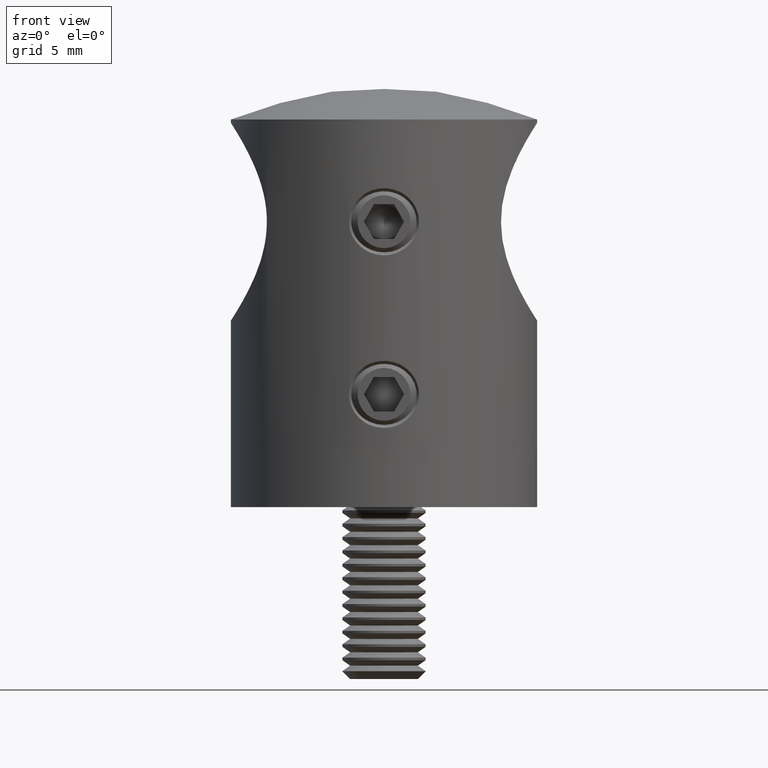
[diagram: clean part render]
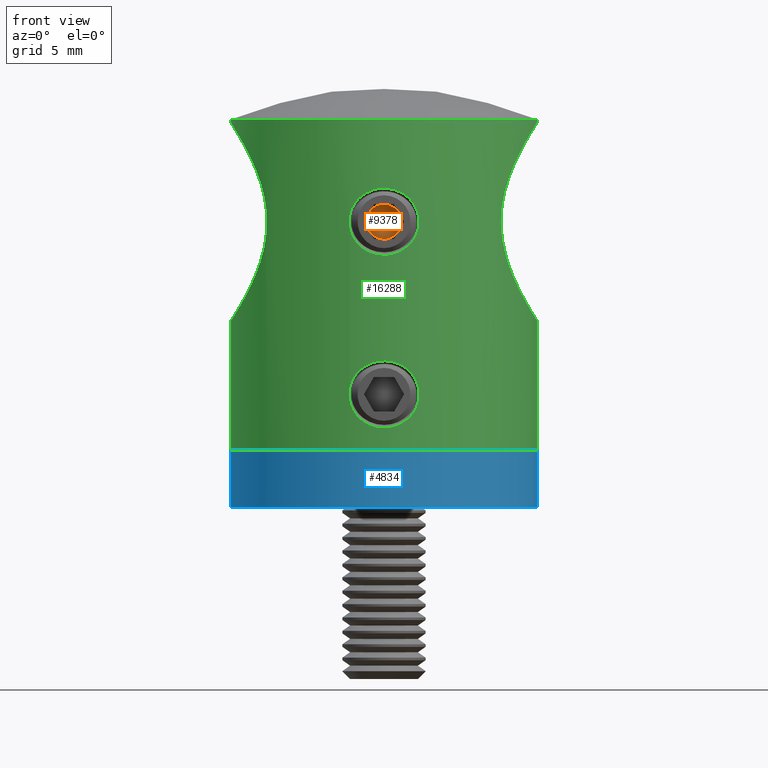
[diagram: same view with three faces highlighted in distinct colors, each labeled with its STEP entity id]
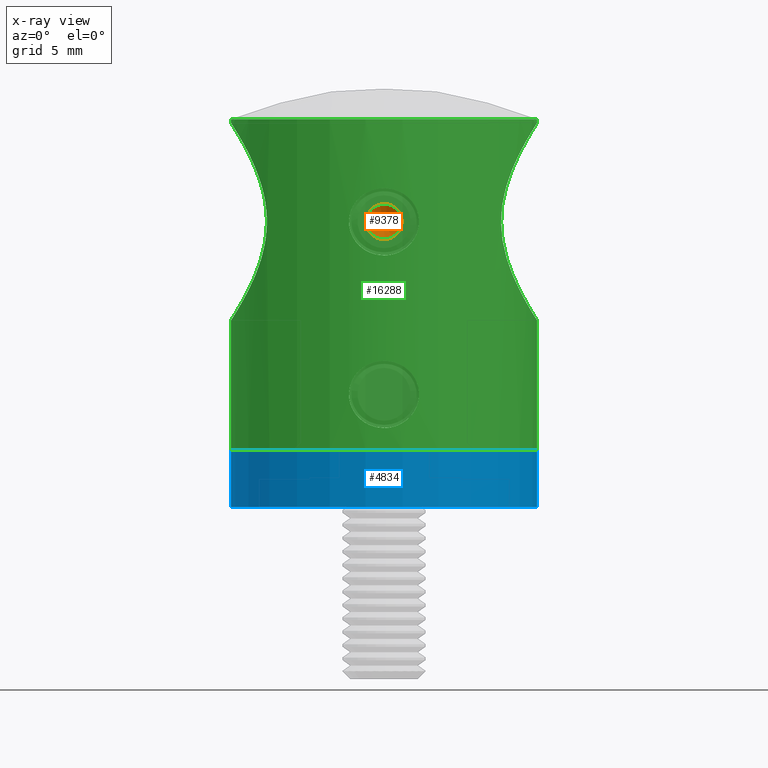
[diagram: x-ray of the same camera — body ghosted, the three highlighted faces saturated]
A machine part, front view with three faces highlighted in distinct colors.
The next image is the same camera in x-ray (body ghosted, the three faces saturated) — at least one of them is partly hidden behind the body in this view.
Their STEP definitions:

[orange] entity #9378 — the highlighted conical surface has half-angle 59 deg.
#101 = DIRECTION ( 'NONE',  ( -1.000000000000000000, -0.0000000000000000000, 0.0000000000000000000 ) ) ;
#181 = ORIENTED_EDGE ( 'NONE', *, *, #7445, .T. ) ;
#628 = VERTEX_POINT ( 'NONE', #13251 ) ;
#1079 = CARTESIAN_POINT ( 'NONE',  ( 2.000000000000001300, 0.0000000000000000000, 5.755839955992561400E-015 ) ) ;
#1451 = AXIS2_PLACEMENT_3D ( 'NONE', #14748, #16484, #6349 ) ;
#1553 = CARTESIAN_POINT ( 'NONE',  ( 2.000000000000001800, 3.755786496842908900E-016, -1.249999999999999300 ) ) ;
#2098 = EDGE_CURVE ( 'NONE', #18902, #4887, #20306, .T. ) ;
#3208 = DIRECTION ( 'NONE',  ( -1.000000000000000000, -0.0000000000000000000, 0.0000000000000000000 ) ) ;
#4139 = CARTESIAN_POINT ( 'NONE',  ( 2.000000000000000000, 0.0000000000000000000, 6.209410300080172700E-015 ) ) ;
#4732 = DIRECTION ( 'NONE',  ( 3.469446951953599400E-016, 0.0000000000000000000, -1.000000000000000000 ) ) ;
#4887 = VERTEX_POINT ( 'NONE', #7149 ) ;
#4956 = FACE_OUTER_BOUND ( 'NONE', #21644, .T. ) ;
#5241 = AXIS2_PLACEMENT_3D ( 'NONE', #6917, #18984, #7281 ) ;
#5413 = ORIENTED_EDGE ( 'NONE', *, *, #12581, .F. ) ;
#6349 = DIRECTION ( 'NONE',  ( 0.0000000000000000000, 0.0000000000000000000, 1.000000000000000000 ) ) ;
#6351 = DIRECTION ( 'NONE',  ( 1.000000000000000000, -0.0000000000000000000, 2.180260461768213300E-016 ) ) ;
#6778 = AXIS2_PLACEMENT_3D ( 'NONE', #13290, #8529, #18533 ) ;
#6917 = CARTESIAN_POINT ( 'NONE',  ( 2.000000000000000000, 0.0000000000000000000, 6.209410300080172700E-015 ) ) ;
#7149 = CARTESIAN_POINT ( 'NONE',  ( 2.000000000000001300, -1.082531754730552600, 0.6250000000000086600 ) ) ;
#7155 = DIRECTION ( 'NONE',  ( 1.000000000000000000, -0.0000000000000000000, 2.180260461768213300E-016 ) ) ;
#7281 = DIRECTION ( 'NONE',  ( 0.0000000000000000000, 0.0000000000000000000, 1.000000000000000000 ) ) ;
#7445 = EDGE_CURVE ( 'NONE', #13828, #19149, #16502, .T. ) ;
#7599 = VERTEX_POINT ( 'NONE', #9926 ) ;
#8519 = ORIENTED_EDGE ( 'NONE', *, *, #12455, .F. ) ;
#8529 = DIRECTION ( 'NONE',  ( -1.000000000000000000, -0.0000000000000000000, 0.0000000000000000000 ) ) ;
#8598 = ORIENTED_EDGE ( 'NONE', *, *, #12327, .F. ) ;
#8868 = CIRCLE ( 'NONE', #5241, 1.250000000000002900 ) ;
#9378 = ADVANCED_FACE ( 'NONE', ( #4956 ), #10725, .F. ) ;
#9879 = CARTESIAN_POINT ( 'NONE',  ( 2.000000000000000000, 0.0000000000000000000, 6.209410300080172700E-015 ) ) ;
#9910 = AXIS2_PLACEMENT_3D ( 'NONE', #9879, #3208, #9950 ) ;
#9926 = CARTESIAN_POINT ( 'NONE',  ( 2.000000000000001300, 1.082531754730552600, 0.6250000000000085500 ) ) ;
#9950 = DIRECTION ( 'NONE',  ( 0.0000000000000000000, 0.0000000000000000000, 1.000000000000000000 ) ) ;
#10277 = CIRCLE ( 'NONE', #9910, 1.250000000000002900 ) ;
#10725 = CONICAL_SURFACE ( 'NONE', #10958, 1.250000000000005300, 1.029744258676652800 ) ;
#10958 = AXIS2_PLACEMENT_3D ( 'NONE', #18701, #7155, #13414 ) ;
#12311 = CARTESIAN_POINT ( 'NONE',  ( 2.000000000000001300, 1.082531754730553100, -0.6249999999999965600 ) ) ;
#12327 = EDGE_CURVE ( 'NONE', #4887, #628, #18000, .T. ) ;
#12455 = EDGE_CURVE ( 'NONE', #628, #7599, #16442, .T. ) ;
#12581 = EDGE_CURVE ( 'NONE', #7599, #19149, #8868, .T. ) ;
#12995 = ORIENTED_EDGE ( 'NONE', *, *, #2098, .F. ) ;
#13251 = CARTESIAN_POINT ( 'NONE',  ( 2.000000000000000000, 0.0000000000000000000, 1.250000000000000200 ) ) ;
#13290 = CARTESIAN_POINT ( 'NONE',  ( 2.000000000000000000, 0.0000000000000000000, 6.209410300080172700E-015 ) ) ;
#13414 = DIRECTION ( 'NONE',  ( 3.469446951953599400E-016, 0.0000000000000000000, -1.000000000000000000 ) ) ;
#13493 = DIRECTION ( 'NONE',  ( 0.0000000000000000000, 0.0000000000000000000, 1.000000000000000000 ) ) ;
#13700 = CARTESIAN_POINT ( 'NONE',  ( 2.000000000000001300, -1.082531754730553300, -0.6249999999999958900 ) ) ;
#13763 = AXIS2_PLACEMENT_3D ( 'NONE', #1079, #6351, #4732 ) ;
#13828 = VERTEX_POINT ( 'NONE', #1553 ) ;
#14674 = ORIENTED_EDGE ( 'NONE', *, *, #19532, .F. ) ;
#14748 = CARTESIAN_POINT ( 'NONE',  ( 2.000000000000000000, 0.0000000000000000000, 6.209410300080172700E-015 ) ) ;
#14957 = AXIS2_PLACEMENT_3D ( 'NONE', #4139, #101, #13493 ) ;
#16442 = CIRCLE ( 'NONE', #6778, 1.250000000000002900 ) ;
#16484 = DIRECTION ( 'NONE',  ( -1.000000000000000000, -0.0000000000000000000, 0.0000000000000000000 ) ) ;
#16502 = CIRCLE ( 'NONE', #13763, 1.250000000000005300 ) ;
#18000 = CIRCLE ( 'NONE', #1451, 1.250000000000002900 ) ;
#18533 = DIRECTION ( 'NONE',  ( 0.0000000000000000000, 0.0000000000000000000, 1.000000000000000000 ) ) ;
#18701 = CARTESIAN_POINT ( 'NONE',  ( 2.000000000000001300, 0.0000000000000000000, 5.755839955992561400E-015 ) ) ;
#18902 = VERTEX_POINT ( 'NONE', #13700 ) ;
#18984 = DIRECTION ( 'NONE',  ( -1.000000000000000000, -0.0000000000000000000, 0.0000000000000000000 ) ) ;
#19149 = VERTEX_POINT ( 'NONE', #12311 ) ;
#19532 = EDGE_CURVE ( 'NONE', #13828, #18902, #10277, .T. ) ;
#20306 = CIRCLE ( 'NONE', #14957, 1.250000000000002900 ) ;
#21644 = EDGE_LOOP ( 'NONE', ( #181, #5413, #8519, #8598, #12995, #14674 ) ) ;

[blue] entity #4834 — the highlighted cylindrical surface (bore or boss wall) has radius 11 mm, axis along (-0, -0, -1).
#806 = CARTESIAN_POINT ( 'NONE',  ( 0.0000000000000000000, 0.0000000000000000000, -4.099999999999999600 ) ) ;
#1974 = AXIS2_PLACEMENT_3D ( 'NONE', #14090, #19071, #20597 ) ;
#2199 = FACE_OUTER_BOUND ( 'NONE', #8574, .T. ) ;
#3113 = DIRECTION ( 'NONE',  ( -1.000000000000000000, 0.0000000000000000000, 0.0000000000000000000 ) ) ;
#4834 = ADVANCED_FACE ( 'NONE', ( #2199, #20756 ), #17861, .T. ) ;
#4842 = CARTESIAN_POINT ( 'NONE',  ( -11.00000000000000000, 0.0000000000000000000, 0.0000000000000000000 ) ) ;
#4919 = CARTESIAN_POINT ( 'NONE',  ( -11.00000000000000000, 0.0000000000000000000, -4.099999999999999600 ) ) ;
#5495 = DIRECTION ( 'NONE',  ( -1.000000000000000000, 0.0000000000000000000, 0.0000000000000000000 ) ) ;
#7589 = CIRCLE ( 'NONE', #18514, 11.00000000000000000 ) ;
#8179 = ORIENTED_EDGE ( 'NONE', *, *, #11706, .F. ) ;
#8574 = EDGE_LOOP ( 'NONE', ( #16320 ) ) ;
#9018 = AXIS2_PLACEMENT_3D ( 'NONE', #806, #15503, #5495 ) ;
#10245 = VERTEX_POINT ( 'NONE', #4919 ) ;
#10771 = EDGE_CURVE ( 'NONE', #15722, #15722, #7589, .T. ) ;
#11706 = EDGE_CURVE ( 'NONE', #10245, #10245, #14924, .T. ) ;
#13140 = DIRECTION ( 'NONE',  ( -0.0000000000000000000, -0.0000000000000000000, -1.000000000000000000 ) ) ;
#14090 = CARTESIAN_POINT ( 'NONE',  ( 0.0000000000000000000, 0.0000000000000000000, -2.100000000000000100 ) ) ;
#14924 = CIRCLE ( 'NONE', #9018, 11.00000000000000000 ) ;
#15503 = DIRECTION ( 'NONE',  ( -0.0000000000000000000, -0.0000000000000000000, -1.000000000000000000 ) ) ;
#15722 = VERTEX_POINT ( 'NONE', #4842 ) ;
#16320 = ORIENTED_EDGE ( 'NONE', *, *, #10771, .T. ) ;
#17861 = CYLINDRICAL_SURFACE ( 'NONE', #1974, 11.00000000000000000 ) ;
#18514 = AXIS2_PLACEMENT_3D ( 'NONE', #19724, #13140, #3113 ) ;
#19071 = DIRECTION ( 'NONE',  ( -0.0000000000000000000, -0.0000000000000000000, -1.000000000000000000 ) ) ;
#19724 = CARTESIAN_POINT ( 'NONE',  ( 0.0000000000000000000, 0.0000000000000000000, 0.0000000000000000000 ) ) ;
#20597 = DIRECTION ( 'NONE',  ( -1.000000000000000000, 0.0000000000000000000, 0.0000000000000000000 ) ) ;
#20756 = FACE_OUTER_BOUND ( 'NONE', #20876, .T. ) ;
#20876 = EDGE_LOOP ( 'NONE', ( #8179 ) ) ;

[green] entity #16288 — the highlighted cylindrical surface (bore or boss wall) has radius 11 mm, axis along (0, 0, 1).
#34 = CARTESIAN_POINT ( 'NONE',  ( -9.445165846722382200, 5.646025497822180700, 20.72855546715352300 ) ) ;
#64 = CARTESIAN_POINT ( 'NONE',  ( -2.495363705507605000, -10.71327480271960800, 4.317531738034352500 ) ) ;
#118 = CARTESIAN_POINT ( 'NONE',  ( -2.257482614959168500, -10.76605286276669600, 15.32954661957115100 ) ) ;
#134 = CARTESIAN_POINT ( 'NONE',  ( -1.996185883738268000, -10.81775451556606900, 5.474240922415229500 ) ) ;
#194 = CARTESIAN_POINT ( 'NONE',  ( -2.511703974928243700, -10.70940442520010400, 16.24273929157860500 ) ) ;
#212 = CARTESIAN_POINT ( 'NONE',  ( -2.511716516407509900, -10.70940148379944100, 4.000337813666588400 ) ) ;
#242 = CARTESIAN_POINT ( 'NONE',  ( -10.53371792439568500, 3.199456506150320000, 10.04470791799387700 ) ) ;
#317 = EDGE_CURVE ( 'NONE', #2653, #2653, #14908, .T. ) ;
#330 = CARTESIAN_POINT ( 'NONE',  ( -1.543197030239320100, -10.89377639715052800, 18.33176205964109700 ) ) ;
#345 = CARTESIAN_POINT ( 'NONE',  ( 1.535022905085276800, -10.89323192799682400, 5.918116975765959100 ) ) ;
#382 = CARTESIAN_POINT ( 'NONE',  ( -8.442684130846844300, -7.052366154554801100, 15.45217027337697100 ) ) ;
#398 = CARTESIAN_POINT ( 'NONE',  ( 1.998357958369216600, -10.81735236367316800, 17.87152513571616200 ) ) ;
#456 = CARTESIAN_POINT ( 'NONE',  ( -9.614416560844219400, -5.356351696933844100, 11.71785320789334200 ) ) ;
#474 = CARTESIAN_POINT ( 'NONE',  ( 0.4897246382423631200, -10.98909321912860500, 14.03119656173292800 ) ) ;
#491 = CARTESIAN_POINT ( 'NONE',  ( 2.495297978060744700, -10.71329013739285200, 3.682043413930197400 ) ) ;
#519 = DIRECTION ( 'NONE',  ( -0.0000000000000000000, -0.0000000000000000000, 1.000000000000000000 ) ) ;
#531 = CARTESIAN_POINT ( 'NONE',  ( -10.76013234905316700, -2.327659393083311400, 23.12391534086663500 ) ) ;
#548 = CARTESIAN_POINT ( 'NONE',  ( 2.511799944583926100, -10.70938191707799400, 16.55668838989981500 ) ) ;
#608 = CARTESIAN_POINT ( 'NONE',  ( -8.979158664259912800, -6.358026487253732200, 19.59329309121691800 ) ) ;
#624 = CARTESIAN_POINT ( 'NONE',  ( 2.087175410688430600, -10.80017123961548500, 15.05642817077661600 ) ) ;
#697 = CARTESIAN_POINT ( 'NONE',  ( 0.9648935137385287200, -10.95759921274479100, 18.62983488542676700 ) ) ;
#994 = CARTESIAN_POINT ( 'NONE',  ( 8.716197689742696000, -6.713987155183075700, 14.04568685242709100 ) ) ;
#1053 = CARTESIAN_POINT ( 'NONE',  ( 0.0000000000000000000, 0.0000000000000000000, 25.99999999999999600 ) ) ;
#1057 = CARTESIAN_POINT ( 'NONE',  ( 9.132219529114749400, -6.139339865191940900, 12.80533429294058900 ) ) ;
#1108 = ORIENTED_EDGE ( 'NONE', *, *, #9304, .T. ) ;
#1202 = CARTESIAN_POINT ( 'NONE',  ( 9.611617826107234900, -5.361562930642149300, 21.07654444607350500 ) ) ;
#1275 = CARTESIAN_POINT ( 'NONE',  ( 8.413237320255296600, -7.086500040589212900, 15.90136674223512400 ) ) ;
#1347 = CARTESIAN_POINT ( 'NONE',  ( 8.558052539306178400, 6.911109365526332500, 14.75603232091404100 ) ) ;
#1417 = CARTESIAN_POINT ( 'NONE',  ( 8.442684130846840800, 7.052366154554805500, 15.45217027337697100 ) ) ;
#1490 = CARTESIAN_POINT ( 'NONE',  ( 10.52162891456611900, -3.215649772253206300, 22.73424068538132300 ) ) ;
#1529 = CARTESIAN_POINT ( 'NONE',  ( -2.320240922396904300, -10.75251050043824500, 3.075104445097748900 ) ) ;
#1560 = CARTESIAN_POINT ( 'NONE',  ( 10.10047049893863900, -4.375164704028945200, 22.01011196334505000 ) ) ;
#1601 = CARTESIAN_POINT ( 'NONE',  ( -1.533328306870229700, -10.89347143110832900, 2.080631270009437800 ) ) ;
#1677 = CARTESIAN_POINT ( 'NONE',  ( -2.430626934630721900, -10.72814813956303400, 3.370817171176732100 ) ) ;
#1720 = CARTESIAN_POINT ( 'NONE',  ( -8.441615027164317600, 7.053644850158699200, 17.33924664838002300 ) ) ;
#1733 = CARTESIAN_POINT ( 'NONE',  ( -0.9635496633443911800, -10.95771746515983500, 14.16962789533540800 ) ) ;
#1750 = CARTESIAN_POINT ( 'NONE',  ( -0.1616220107861330000, -11.00003883473656800, 6.415315291332948500 ) ) ;
#1930 = CARTESIAN_POINT ( 'NONE',  ( -10.99148700237107000, 0.4946336514024489700, 23.48682921834959500 ) ) ;
#1948 = CARTESIAN_POINT ( 'NONE',  ( -2.087678545343330000, -10.80007399471471700, 15.05715110750825800 ) ) ;
#1965 = CARTESIAN_POINT ( 'NONE',  ( 1.774878405260975000, -10.85586508052390200, 2.291099913721534000 ) ) ;
#2003 = CARTESIAN_POINT ( 'NONE',  ( -10.69829764722809700, -2.568131071932639600, 9.776651623962857600 ) ) ;
#2020 = CARTESIAN_POINT ( 'NONE',  ( -0.9631123533028067600, -10.95775591053731500, 18.63054673490993100 ) ) ;
#2073 = CARTESIAN_POINT ( 'NONE',  ( -10.32893578937957300, -3.788682685638863100, 22.40898187192343400 ) ) ;
#2093 = CARTESIAN_POINT ( 'NONE',  ( 2.381829622713069700, -10.73922843645709300, 15.61740488451371400 ) ) ;
#2144 = CARTESIAN_POINT ( 'NONE',  ( -8.713927950806921200, -6.716937605689044400, 18.74613954834619600 ) ) ;
#2166 = CARTESIAN_POINT ( 'NONE',  ( 0.3284569030260461900, -10.99628005262925400, 14.00036723653772300 ) ) ;
#2181 = CARTESIAN_POINT ( 'NONE',  ( 1.890372269886328600, -10.83698242449021300, 2.402011649646420100 ) ) ;
#2218 = CARTESIAN_POINT ( 'NONE',  ( -10.53058741645235900, -3.186281656805154800, 22.74910505009927800 ) ) ;
#2235 = CARTESIAN_POINT ( 'NONE',  ( 1.263044276381334100, -10.92810671215078600, 18.49350634205210800 ) ) ;
#2306 = CARTESIAN_POINT ( 'NONE',  ( 1.265772666088006400, -10.93117442415845100, 14.29018104766522700 ) ) ;
#2371 = CARTESIAN_POINT ( 'NONE',  ( 1.399033590713174800, -10.91066932007638700, 18.40581165892201200 ) ) ;
#2550 = EDGE_LOOP ( 'NONE', ( #6150 ) ) ;
#2653 = VERTEX_POINT ( 'NONE', #7920 ) ;
#2667 = CARTESIAN_POINT ( 'NONE',  ( 8.485167145169288700, -7.000410335542114600, 15.19174385368667200 ) ) ;
#2737 = CARTESIAN_POINT ( 'NONE',  ( 8.441615027164326400, -7.053644850158703700, 17.33924664838004000 ) ) ;
#3023 = CARTESIAN_POINT ( 'NONE',  ( 10.32893578937957500, 3.788682685638860500, 22.40898187192343700 ) ) ;
#3097 = CARTESIAN_POINT ( 'NONE',  ( 9.947855748482229600, 4.698627205197778900, 21.72771569207881700 ) ) ;
#3165 = CARTESIAN_POINT ( 'NONE',  ( 10.39262641175012400, 3.610959546615188500, 10.28242976620969500 ) ) ;
#3200 = ORIENTED_EDGE ( 'NONE', *, *, #10980, .T. ) ;
#3225 = CARTESIAN_POINT ( 'NONE',  ( 10.99999999999999600, 0.0000000000000000000, 23.74878637916747000 ) ) ;
#3232 = CARTESIAN_POINT ( 'NONE',  ( 10.38970443803621400, -3.619270667396483600, 22.51260078479329600 ) ) ;
#3260 = EDGE_LOOP ( 'NONE', ( #1108 ) ) ;
#3277 = CYLINDRICAL_SURFACE ( 'NONE', #7919, 10.99999999999999800 ) ;
#3348 = CARTESIAN_POINT ( 'NONE',  ( -1.776361239528236000, -10.85562254072522800, 5.707474951774919700 ) ) ;
#3388 = CARTESIAN_POINT ( 'NONE',  ( -9.125703618000466500, 6.149007665515013900, 19.97822596878965500 ) ) ;
#3422 = CARTESIAN_POINT ( 'NONE',  ( -2.495562452211827600, -10.71322910456378900, 3.683362971071481300 ) ) ;
#3460 = CARTESIAN_POINT ( 'NONE',  ( -10.99999999999999500, 0.4841043843129387300, 9.299999999999995400 ) ) ;
#3476 = CARTESIAN_POINT ( 'NONE',  ( -2.511716516407509900, -10.70940148379944100, 16.40033781366658500 ) ) ;
#3495 = CARTESIAN_POINT ( 'NONE',  ( -0.6530340315527127800, -10.98180644576739700, 6.337544000683097400 ) ) ;
#3536 = CARTESIAN_POINT ( 'NONE',  ( -9.611617826107233100, 5.361562930642147500, 21.07654444607351300 ) ) ;
#3571 = CARTESIAN_POINT ( 'NONE',  ( 2.430721202022804000, -10.72812621128730700, 3.371317447623022100 ) ) ;
#3625 = CARTESIAN_POINT ( 'NONE',  ( -2.495363705507605000, -10.71327480271960800, 16.71753173803435300 ) ) ;
#3684 = CARTESIAN_POINT ( 'NONE',  ( -10.39889520333792000, -3.592859680259353100, 22.52820406413297100 ) ) ;
#3698 = CARTESIAN_POINT ( 'NONE',  ( 2.179889364258655400, -10.78223673683874400, 17.61001349837584600 ) ) ;
#3710 = CARTESIAN_POINT ( 'NONE',  ( 2.511715917072544300, -10.70940162436372500, 3.998297708608496300 ) ) ;
#3748 = CARTESIAN_POINT ( 'NONE',  ( -10.99999999999999600, 2.710505431213761100E-016, 9.299999999999995400 ) ) ;
#3767 = CARTESIAN_POINT ( 'NONE',  ( -0.8104466576801517800, -10.97117418874867300, 18.69149778061502700 ) ) ;
#3824 = CARTESIAN_POINT ( 'NONE',  ( -9.134031390889502300, -6.136687821570409300, 19.99930232546839900 ) ) ;
#3843 = CARTESIAN_POINT ( 'NONE',  ( -2.020667218593132300E-015, -10.99999999999999800, 13.98484490069484600 ) ) ;
#3861 = CARTESIAN_POINT ( 'NONE',  ( -2.020667218593132300E-015, -10.99999999999999800, 1.584844900694847100 ) ) ;
#3897 = CARTESIAN_POINT ( 'NONE',  ( -10.39262641175012400, -3.610959546615189400, 10.28242976620969400 ) ) ;
#3916 = CARTESIAN_POINT ( 'NONE',  ( 2.178857699620404100, -10.78245327803794000, 15.18811744677702300 ) ) ;
#3982 = CARTESIAN_POINT ( 'NONE',  ( 2.256830909749577800, -10.76619328780971300, 17.47192719234511700 ) ) ;
#4079 = FACE_BOUND ( 'NONE', #2550, .T. ) ;
#4495 = CARTESIAN_POINT ( 'NONE',  ( 9.125703618000468300, -6.149007665515014800, 19.97822596878964800 ) ) ;
#4562 = CARTESIAN_POINT ( 'NONE',  ( 10.10539096786581000, -4.364378087092130300, 10.78095930433928400 ) ) ;
#4709 = CARTESIAN_POINT ( 'NONE',  ( 8.605012383103654000, 6.852844332284524500, 14.52826397732347600 ) ) ;
#4710 = CIRCLE ( 'NONE', #9852, 11.00000000000000000 ) ;
#4779 = CARTESIAN_POINT ( 'NONE',  ( 9.126122353799150500, 6.148371097858402300, 12.82074655299189000 ) ) ;
#4848 = CARTESIAN_POINT ( 'NONE',  ( 10.84870917457875600, 1.878547199976223300, 23.26366087614006200 ) ) ;
#4892 = CARTESIAN_POINT ( 'NONE',  ( -1.661524859658452900, -10.87442308525437100, 2.181962713599229900 ) ) ;
#4927 = CARTESIAN_POINT ( 'NONE',  ( 10.84297000111511100, -1.910690892895690100, 23.25460155054432200 ) ) ;
#5005 = CARTESIAN_POINT ( 'NONE',  ( -8.485167145169281600, 7.000410335542112800, 15.19174385368666700 ) ) ;
#5021 = CARTESIAN_POINT ( 'NONE',  ( -1.892899697437106800, -10.83654340792404500, 14.80472538099371200 ) ) ;
#5039 = CARTESIAN_POINT ( 'NONE',  ( -1.397269774137160900, -10.91089534265097100, 1.993051909358202400 ) ) ;
#5078 = CARTESIAN_POINT ( 'NONE',  ( -9.451433528349374700, 5.635541834417797900, 12.05790560231922000 ) ) ;
#5094 = CARTESIAN_POINT ( 'NONE',  ( -1.777212278540741600, -10.85548324659036000, 14.69334404728969000 ) ) ;
#5112 = CARTESIAN_POINT ( 'NONE',  ( 0.9648935137385287200, -10.95759921274479100, 6.229834885426770400 ) ) ;
#5191 = CARTESIAN_POINT ( 'NONE',  ( -2.430803093581094000, -10.72810763096586800, 4.628396887069898800 ) ) ;
#5228 = CARTESIAN_POINT ( 'NONE',  ( -8.602152119893851500, 6.856982156598213900, 14.49886696194903600 ) ) ;
#5248 = CARTESIAN_POINT ( 'NONE',  ( -1.533328306870229700, -10.89347143110832900, 14.48063127000943600 ) ) ;
#5269 = CARTESIAN_POINT ( 'NONE',  ( 1.543890676010267700, -10.89363039259128000, 2.069276441871760900 ) ) ;
#5303 = CARTESIAN_POINT ( 'NONE',  ( -10.96821046489719000, 0.9576882426351973600, 9.348973725324683000 ) ) ;
#5322 = CARTESIAN_POINT ( 'NONE',  ( -1.996185883716013400, -10.81775451557036900, 17.87424092245295900 ) ) ;
#5374 = CARTESIAN_POINT ( 'NONE',  ( -9.947855748482227900, -4.698627205197779800, 21.72771569207881400 ) ) ;
#5390 = CARTESIAN_POINT ( 'NONE',  ( 2.463499994663159100, -10.72059549541417000, 16.87095394980573500 ) ) ;
#5406 = CARTESIAN_POINT ( 'NONE',  ( 2.318934602487287200, -10.75279230290379400, 3.072080269349922100 ) ) ;
#5407 = B_SPLINE_CURVE_WITH_KNOTS ( 'NONE', 3,
 ( #18481, #16650, #21502, #11697, #6652, #14912, #5039, #1601, #4892, #20178, #8480, #18327, #16724, #20248, #10238, #1529, #13527, #1677, #13385, #3422, #11847, #212, #6799, #64, #18405, #5191, #6581, #19959, #8556, #13235, #16576, #134, #8334, #3348, #10164, #8404, #8261, #9944, #3495, #10093, #11772, #1750, #13311, #15126, #21618, #5112, #11622, #16800, #15204, #345, #10377, #5549, #13819, #12070, #15348, #12135, #7230, #6941, #12210, #10586, #15415, #13885, #17223, #3710, #8623, #491, #8909, #3571, #20320, #5406, #7085, #17086, #18774, #20601, #2181, #1965, #5269, #8765, #5478, #17018, #13672, #20460, #15486, #10445, #3861 ),
 .UNSPECIFIED., .T., .F.,
 ( 4, 3, 3, 3, 3, 3, 3, 3, 3, 3, 3, 3, 3, 3, 3, 3, 3, 3, 3, 3, 3, 3, 3, 3, 3, 3, 3, 3, 4 ),
 ( 0.0000000000000000000, 0.03571428571428571200, 0.07142857142857142500, 0.1071428571428571400, 0.1428571428571428500, 0.1785714285714285800, 0.2142857142857142700, 0.2500000000000000000, 0.2857142857142857000, 0.3214285714285714500, 0.3571428571428571500, 0.3928571428571428500, 0.4285714285714285500, 0.4642857142857143000, 0.5000000000000000000, 0.5357142857142857000, 0.5714285714285714000, 0.6071428571428571000, 0.6428571428571429000, 0.6785714285714286000, 0.7142857142857143000, 0.7500000000000000000, 0.7857142857142857000, 0.8214285714285714000, 0.8571428571428571000, 0.8928571428571429000, 0.9285714285714286000, 0.9642857142857143000, 1.000000000000000000 ),
 .UNSPECIFIED. ) ;
#5437 = CARTESIAN_POINT ( 'NONE',  ( 0.0000000000000000000, 0.0000000000000000000, 23.74878637916747000 ) ) ;
#5446 = CARTESIAN_POINT ( 'NONE',  ( -10.10047034617905800, -4.375483649562109000, 10.78982942695773400 ) ) ;
#5463 = CARTESIAN_POINT ( 'NONE',  ( 1.777126563584013900, -10.85549727912102600, 18.10673847623389300 ) ) ;
#5478 = CARTESIAN_POINT ( 'NONE',  ( 0.9623838866416614100, -10.95781991341035100, 1.769162574123964900 ) ) ;
#5549 = CARTESIAN_POINT ( 'NONE',  ( 1.777126563584013900, -10.85549727912102600, 5.706738476233899100 ) ) ;
#5586 = CARTESIAN_POINT ( 'NONE',  ( -10.99999999999999800, -0.4841043843129450600, 9.299999999999995400 ) ) ;
#6150 = ORIENTED_EDGE ( 'NONE', *, *, #16040, .T. ) ;
#6188 = FACE_OUTER_BOUND ( 'NONE', #17143, .T. ) ;
#6329 = CARTESIAN_POINT ( 'NONE',  ( 10.75664178787483000, -2.343158699880905100, 9.681676794799932000 ) ) ;
#6399 = CARTESIAN_POINT ( 'NONE',  ( 9.941559082019178800, -4.721753626895443600, 21.72179177554297200 ) ) ;
#6470 = CARTESIAN_POINT ( 'NONE',  ( 10.59253960969031100, 2.974511089570728300, 22.85112724400619300 ) ) ;
#6543 = CARTESIAN_POINT ( 'NONE',  ( 10.58647855960269600, 2.995887424184126200, 9.958827788779814200 ) ) ;
#6581 = CARTESIAN_POINT ( 'NONE',  ( -2.382856163137168100, -10.73900133749352800, 4.779816620111248000 ) ) ;
#6611 = CARTESIAN_POINT ( 'NONE',  ( 11.00000000000000500, 0.4841043843129448900, 9.300000000000000700 ) ) ;
#6613 = EDGE_LOOP ( 'NONE', ( #15336 ) ) ;
#6652 = CARTESIAN_POINT ( 'NONE',  ( -1.115993498496286900, -10.94431255610769100, 1.830513048320795400 ) ) ;
#6710 = FACE_BOUND ( 'NONE', #3260, .T. ) ;
#6767 = CARTESIAN_POINT ( 'NONE',  ( -10.58394417430352300, 3.004956304348640900, 22.83701482432169200 ) ) ;
#6799 = CARTESIAN_POINT ( 'NONE',  ( -2.511729057886776100, -10.70939854239878000, 4.157936335757463000 ) ) ;
#6852 = CARTESIAN_POINT ( 'NONE',  ( -2.511729057886776100, -10.70939854239878000, 16.55793633575457200 ) ) ;
#6903 = CARTESIAN_POINT ( 'NONE',  ( -9.941559082019182400, 4.721753626895441000, 21.72179177554297200 ) ) ;
#6921 = CARTESIAN_POINT ( 'NONE',  ( -1.661524859644376400, -10.87442308525667500, 14.58196271358566800 ) ) ;
#6941 = CARTESIAN_POINT ( 'NONE',  ( 2.320207892953276600, -10.75251762767572900, 4.924972162063986600 ) ) ;
#6996 = CARTESIAN_POINT ( 'NONE',  ( -1.115993498471008700, -10.94431255610991500, 14.23051304831070000 ) ) ;
#7050 = CARTESIAN_POINT ( 'NONE',  ( -8.713338137559071900, -6.714570131918350200, 14.08064251900250200 ) ) ;
#7069 = CARTESIAN_POINT ( 'NONE',  ( 0.002621827913309108200, -10.99999968754628400, 18.81515378352823500 ) ) ;
#7085 = CARTESIAN_POINT ( 'NONE',  ( 2.256039582255863900, -10.76635616935171300, 2.926755654170211800 ) ) ;
#7142 = CARTESIAN_POINT ( 'NONE',  ( 1.543890676010139400, -10.89363039259130200, 14.46927644187164600 ) ) ;
#7195 = CARTESIAN_POINT ( 'NONE',  ( -8.402678174434401000, -7.098943678384630500, 16.89213793340527300 ) ) ;
#7230 = CARTESIAN_POINT ( 'NONE',  ( 2.256830909742726800, -10.76619328781119300, 5.071927192361033400 ) ) ;
#7353 = CARTESIAN_POINT ( 'NONE',  ( 1.995493121756457100, -10.81788920119303300, 14.92473889477621200 ) ) ;
#7646 = CARTESIAN_POINT ( 'NONE',  ( 8.602152119893858600, -6.856982156598218300, 14.49886696194906400 ) ) ;
#7858 = CARTESIAN_POINT ( 'NONE',  ( 10.40114453351063000, -3.603181246278879300, 10.26497764200933300 ) ) ;
#7919 = AXIS2_PLACEMENT_3D ( 'NONE', #1053, #15892, #14299 ) ;
#7920 = CARTESIAN_POINT ( 'NONE',  ( -10.99999999999999800, 0.0000000000000000000, 9.299999999999998900 ) ) ;
#7998 = CARTESIAN_POINT ( 'NONE',  ( 10.99148700237106600, -0.4946336514024511400, 23.48682921834958400 ) ) ;
#8068 = CARTESIAN_POINT ( 'NONE',  ( 10.74873748235941500, 2.348874627246540800, 9.695645327102669200 ) ) ;
#8142 = CARTESIAN_POINT ( 'NONE',  ( 10.95950930229003000, -0.9729361877379636400, 23.43713052271612800 ) ) ;
#8217 = CARTESIAN_POINT ( 'NONE',  ( 10.83727758145454200, 1.898942890585056900, 9.554592817602499000 ) ) ;
#8261 = CARTESIAN_POINT ( 'NONE',  ( -0.9631123533028165300, -10.95775591053731500, 6.230546734909931500 ) ) ;
#8293 = CARTESIAN_POINT ( 'NONE',  ( 10.31976075114465600, -3.813519458579155000, 22.39319822350305600 ) ) ;
#8334 = CARTESIAN_POINT ( 'NONE',  ( -1.892943344172719700, -10.83654561251257500, 5.595331397847613400 ) ) ;
#8388 = CARTESIAN_POINT ( 'NONE',  ( -0.6586619930911564700, -10.98452728325967300, 14.04785758938482100 ) ) ;
#8404 = CARTESIAN_POINT ( 'NONE',  ( -1.268443744210112200, -10.93091935414430800, 6.108644643610253100 ) ) ;
#8443 = CARTESIAN_POINT ( 'NONE',  ( -10.99961482503125000, 0.2557540722021372500, 23.49940324905146500 ) ) ;
#8480 = CARTESIAN_POINT ( 'NONE',  ( -1.892899697423030100, -10.83654340792634900, 2.404725380980155000 ) ) ;
#8516 = CARTESIAN_POINT ( 'NONE',  ( -10.38970443803621700, 3.619270667396481400, 22.51260078479329600 ) ) ;
#8534 = CARTESIAN_POINT ( 'NONE',  ( -2.020667218593132300E-015, -10.99999999999999800, 13.98484490069484600 ) ) ;
#8556 = CARTESIAN_POINT ( 'NONE',  ( -2.256864148927033100, -10.76618397735132300, 5.071739856433886500 ) ) ;
#8588 = CARTESIAN_POINT ( 'NONE',  ( -10.99999999999999600, 2.710505431213761100E-016, 9.299999999999995400 ) ) ;
#8607 = CARTESIAN_POINT ( 'NONE',  ( -2.087083062809130600, -10.80018908579545200, 17.74370445952115500 ) ) ;
#8623 = CARTESIAN_POINT ( 'NONE',  ( 2.511631889561162000, -10.70942133164945500, 3.839907027314249300 ) ) ;
#8663 = VERTEX_POINT ( 'NONE', #15076 ) ;
#8666 = CARTESIAN_POINT ( 'NONE',  ( -10.99297397562942500, -0.4598195259154094200, 23.48913258083435500 ) ) ;
#8682 = CARTESIAN_POINT ( 'NONE',  ( -1.776361239528236000, -10.85562254072522800, 18.10747495177491800 ) ) ;
#8731 = CARTESIAN_POINT ( 'NONE',  ( -10.32148190190005700, -3.808950110484047100, 10.40382481806966600 ) ) ;
#8750 = CARTESIAN_POINT ( 'NONE',  ( 2.318934602487287200, -10.75279230290379400, 15.47208026934992200 ) ) ;
#8765 = CARTESIAN_POINT ( 'NONE',  ( 1.265772666319474600, -10.93117442413812100, 1.890181047744562000 ) ) ;
#8824 = CARTESIAN_POINT ( 'NONE',  ( 2.495297978060719400, -10.71329013739285700, 16.08204341393588500 ) ) ;
#8877 = CARTESIAN_POINT ( 'NONE',  ( -9.454023007717237800, -5.631244608318725800, 20.74775790618729600 ) ) ;
#8909 = CARTESIAN_POINT ( 'NONE',  ( 2.463009590041774600, -10.72070817434008000, 3.526680430776609800 ) ) ;
#9021 = B_SPLINE_CURVE_WITH_KNOTS ( 'NONE', 3,
 ( #12772, #16318, #21006, #16038, #6329, #19501, #7858, #4562, #11288, #16111, #11061, #1057, #19643, #994, #7646, #2667, #19360, #1275, #19573, #12697, #2737, #14439, #9542, #21146, #21218, #14509, #4495, #16179, #1202, #6399, #1560, #8293, #3232, #1490, #21361, #17991, #4927, #11438, #8142, #7998, #11363, #13125, #13058, #19920, #16684, #4848, #9679, #6470, #16465, #11656, #3023, #14797, #16396, #3097, #21571, #19707, #18285, #14728, #16605, #21430, #19778, #18135, #13267, #19846, #1417, #1347, #4709, #21499, #9755, #14941, #4779, #9832, #16536, #18064, #13194, #11509, #3165, #14870, #6543, #18212, #8068, #8217, #9905, #11579, #6611, #19992 ),
 .UNSPECIFIED., .T., .F.,
 ( 4, 2, 2, 2, 2, 2, 2, 2, 2, 2, 2, 2, 2, 2, 2, 2, 2, 2, 2, 2, 2, 2, 2, 2, 2, 2, 2, 2, 2, 2, 2, 2, 2, 2, 2, 2, 2, 2, 2, 2, 2, 2, 4 ),
 ( 0.0000000000000000000, 0.001429294004371784200, 0.002858588008743568400, 0.004287882013115352400, 0.005717176017487137600, 0.007146470021858922900, 0.008575764026230708200, 0.01000505803060249300, 0.01071970503278838600, 0.01143435203497427400, 0.01286364603934605700, 0.01357829304153195000, 0.01429294004371784100, 0.01572223404808962800, 0.01715152805246140900, 0.01858082205683319500, 0.01929546905901909100, 0.02001011606120498700, 0.02143941006557678300, 0.02215405706776268200, 0.02286870406994858200, 0.02358335107213447800, 0.02429799807432037700, 0.02572729207869217300, 0.02644193908087807600, 0.02715658608306396900, 0.02787123308524986500, 0.02858588008743576100, 0.03001517409180755700, 0.03144446809617935200, 0.03287376210055114500, 0.03430305610492294400, 0.03573235010929473600, 0.03644699711148063200, 0.03716164411366652800, 0.03859093811803832700, 0.04002023212241012700, 0.04144952612678192600, 0.04216417312896782200, 0.04287882013115372500, 0.04359346713333962100, 0.04430811413552551700, 0.04573740813989731600 ),
 .UNSPECIFIED. ) ;
#9026 = CARTESIAN_POINT ( 'NONE',  ( -10.52509504090270200, -3.204385582520144800, 10.05999941236710000 ) ) ;
#9304 = EDGE_CURVE ( 'NONE', #11810, #11810, #5407, .T. ) ;
#9542 = CARTESIAN_POINT ( 'NONE',  ( 8.604462001010002600, -6.853532578562345100, 18.26917815072582100 ) ) ;
#9612 = EDGE_CURVE ( 'NONE', #9706, #9706, #19639, .T. ) ;
#9679 = CARTESIAN_POINT ( 'NONE',  ( 10.76013234905316700, 2.327659393083309600, 23.12391534086663100 ) ) ;
#9706 = VERTEX_POINT ( 'NONE', #3225 ) ;
#9755 = CARTESIAN_POINT ( 'NONE',  ( 8.775104742126355700, 6.634005485550293500, 13.85960298956172700 ) ) ;
#9832 = CARTESIAN_POINT ( 'NONE',  ( 9.445230156511863500, 5.645901492588390800, 12.07133753557889700 ) ) ;
#9852 = AXIS2_PLACEMENT_3D ( 'NONE', #18978, #13932, #18828 ) ;
#9905 = CARTESIAN_POINT ( 'NONE',  ( 10.87554067984692500, 1.666944937178387300, 9.494294178244365100 ) ) ;
#9944 = CARTESIAN_POINT ( 'NONE',  ( -0.8104466578491685800, -10.97117418873381900, 6.291497780559771200 ) ) ;
#10061 = CARTESIAN_POINT ( 'NONE',  ( -8.604462001010004400, 6.853532578562342400, 18.26917815072582800 ) ) ;
#10093 = CARTESIAN_POINT ( 'NONE',  ( -0.4903270790838651400, -10.98906635504204500, 6.368688208749404100 ) ) ;
#10149 = CARTESIAN_POINT ( 'NONE',  ( -0.3315329493984952600, -10.99999999999999600, 13.98484493005393500 ) ) ;
#10164 = CARTESIAN_POINT ( 'NONE',  ( -1.543197030239268600, -10.89377639715053700, 5.931762059629532400 ) ) ;
#10201 = CARTESIAN_POINT ( 'NONE',  ( -8.971544570989790300, 6.368727316150223100, 19.57206776467770800 ) ) ;
#10219 = CARTESIAN_POINT ( 'NONE',  ( -2.463094693421274500, -10.72068862206341100, 15.92709007112410400 ) ) ;
#10220 = EDGE_LOOP ( 'NONE', ( #3200 ) ) ;
#10238 = CARTESIAN_POINT ( 'NONE',  ( -2.257482614945340400, -10.76605286276967800, 2.929546619533276000 ) ) ;
#10272 = CARTESIAN_POINT ( 'NONE',  ( -10.75343564665797100, 2.358425003356712700, 23.11323472417503300 ) ) ;
#10331 = CARTESIAN_POINT ( 'NONE',  ( 11.00000000000000000, 0.0000000000000000000, 9.299999999999998900 ) ) ;
#10359 = CARTESIAN_POINT ( 'NONE',  ( -2.177980241902248300, -10.78262365602053500, 17.61316799658935400 ) ) ;
#10377 = CARTESIAN_POINT ( 'NONE',  ( 1.660782927785467800, -10.87454360748031900, 5.818738680863162000 ) ) ;
#10414 = CARTESIAN_POINT ( 'NONE',  ( -8.605012383103655800, -6.852844332284520900, 14.52826397732346700 ) ) ;
#10433 = CARTESIAN_POINT ( 'NONE',  ( -0.6530340314932273600, -10.98180644577005100, 18.73754400069448100 ) ) ;
#10445 = CARTESIAN_POINT ( 'NONE',  ( 0.1643935056628486900, -11.00000000000000000, 1.584844886136918000 ) ) ;
#10487 = CARTESIAN_POINT ( 'NONE',  ( -10.84870917457875400, -1.878547199976228700, 23.26366087614005500 ) ) ;
#10503 = CARTESIAN_POINT ( 'NONE',  ( 0.6509923734586801100, -10.98190638562795800, 14.06202588692813500 ) ) ;
#10570 = CARTESIAN_POINT ( 'NONE',  ( 2.383584876156975800, -10.73884196754174300, 17.17801713178284500 ) ) ;
#10586 = CARTESIAN_POINT ( 'NONE',  ( 2.431469541523701300, -10.72795581613253500, 4.625850491968456000 ) ) ;
#10625 = CARTESIAN_POINT ( 'NONE',  ( -10.18244583592515300, -4.166392664168425200, 22.15353385299223300 ) ) ;
#10643 = CARTESIAN_POINT ( 'NONE',  ( 1.893470199320557800, -10.83645095077188500, 17.99473827165266100 ) ) ;
#10713 = CARTESIAN_POINT ( 'NONE',  ( -0.1616220108473223100, -11.00003883473658200, 18.81531529133300400 ) ) ;
#10980 = EDGE_CURVE ( 'NONE', #8663, #8663, #4710, .T. ) ;
#11061 = CARTESIAN_POINT ( 'NONE',  ( 9.451433528349369300, -5.635541834417797900, 12.05790560231922000 ) ) ;
#11288 = CARTESIAN_POINT ( 'NONE',  ( 9.946385993569125000, -4.711332995782090200, 11.06939817182897200 ) ) ;
#11363 = CARTESIAN_POINT ( 'NONE',  ( 10.99961482503124400, -0.2557540722021420200, 23.49940324905145100 ) ) ;
#11438 = CARTESIAN_POINT ( 'NONE',  ( 10.93554320940685000, -1.212055794307701500, 23.39982116040939200 ) ) ;
#11509 = CARTESIAN_POINT ( 'NONE',  ( 10.32148190190005700, 3.808950110484045700, 10.40382481806966700 ) ) ;
#11579 = CARTESIAN_POINT ( 'NONE',  ( 10.96804341658750400, 0.9624892842059139500, 9.349217939927076100 ) ) ;
#11622 = CARTESIAN_POINT ( 'NONE',  ( 1.116343252776195600, -10.94426300031197400, 6.169244775404881600 ) ) ;
#11656 = CARTESIAN_POINT ( 'NONE',  ( 10.39889520333791500, 3.592859680259352700, 22.52820406413297500 ) ) ;
#11697 = CARTESIAN_POINT ( 'NONE',  ( -0.9635496633443911800, -10.95771746515983500, 1.769627895335405900 ) ) ;
#11772 = CARTESIAN_POINT ( 'NONE',  ( -0.3276201266150175500, -10.99632626431669300, 6.399832416815710800 ) ) ;
#11790 = VERTEX_POINT ( 'NONE', #10331 ) ;
#11810 = VERTEX_POINT ( 'NONE', #21563 ) ;
#11828 = CARTESIAN_POINT ( 'NONE',  ( -2.382999229834640100, -10.73896813810979400, 15.62066227062434400 ) ) ;
#11847 = CARTESIAN_POINT ( 'NONE',  ( -2.511703974928243700, -10.70940442520010400, 3.842739291575714100 ) ) ;
#11884 = CARTESIAN_POINT ( 'NONE',  ( -10.10047049893865000, 4.375164704028947900, 22.01011196334505400 ) ) ;
#11963 = CARTESIAN_POINT ( 'NONE',  ( -10.95950930229003000, 0.9729361877379643100, 23.43713052271612400 ) ) ;
#12054 = CARTESIAN_POINT ( 'NONE',  ( -1.268443744548116500, -10.93091935411460000, 18.50864464349973900 ) ) ;
#12070 = CARTESIAN_POINT ( 'NONE',  ( 1.998357958369267700, -10.81735236367315700, 5.471525135721878800 ) ) ;
#12102 = CARTESIAN_POINT ( 'NONE',  ( -9.941566712052260600, -4.721521006677416900, 11.07832343451947400 ) ) ;
#12119 = CARTESIAN_POINT ( 'NONE',  ( 0.3311095054345719000, -10.99992139316568700, 18.81483076791868600 ) ) ;
#12135 = CARTESIAN_POINT ( 'NONE',  ( 2.179889364258604400, -10.78223673683875500, 5.210013498370140700 ) ) ;
#12173 = CARTESIAN_POINT ( 'NONE',  ( -9.866065930372879900, -4.867538550024850300, 21.57379312522552100 ) ) ;
#12191 = CARTESIAN_POINT ( 'NONE',  ( 1.890372269886392700, -10.83698242449020200, 14.80201164964647400 ) ) ;
#12210 = CARTESIAN_POINT ( 'NONE',  ( 2.383584876163826700, -10.73884196754026400, 4.778017131766939800 ) ) ;
#12246 = CARTESIAN_POINT ( 'NONE',  ( -8.444364125748993600, -7.050408712736898800, 17.36475345057839100 ) ) ;
#12320 = VERTEX_POINT ( 'NONE', #17177 ) ;
#12340 = CARTESIAN_POINT ( 'NONE',  ( 2.320207892953276600, -10.75251762767572900, 17.32497216206398200 ) ) ;
#12410 = CARTESIAN_POINT ( 'NONE',  ( -0.3276201266745030200, -10.99632626431403900, 18.79983241680432100 ) ) ;
#12697 = CARTESIAN_POINT ( 'NONE',  ( 8.400936357774289900, -7.101004865438448600, 16.86596985220172600 ) ) ;
#12748 = ORIENTED_EDGE ( 'NONE', *, *, #9612, .F. ) ;
#12772 = CARTESIAN_POINT ( 'NONE',  ( 11.00000000000000400, -4.065758146820641600E-016, 9.299999999999998900 ) ) ;
#13058 = CARTESIAN_POINT ( 'NONE',  ( 10.99297397562942900, 0.4598195259154076500, 23.48913258083436500 ) ) ;
#13125 = CARTESIAN_POINT ( 'NONE',  ( 11.00035846530514200, 0.2214725248977498800, 23.50055536974437600 ) ) ;
#13194 = CARTESIAN_POINT ( 'NONE',  ( 10.10047034617905700, 4.375483649562105400, 10.78982942695773600 ) ) ;
#13235 = CARTESIAN_POINT ( 'NONE',  ( -2.177980241879993600, -10.78262365602483500, 5.213167996627087900 ) ) ;
#13267 = CARTESIAN_POINT ( 'NONE',  ( 8.402678174434404600, 7.098943678384629600, 16.89213793340527300 ) ) ;
#13311 = CARTESIAN_POINT ( 'NONE',  ( 0.002621827913299337800, -10.99999968754628400, 6.415153783528235300 ) ) ;
#13349 = CARTESIAN_POINT ( 'NONE',  ( -10.75664178787482500, 2.343158699880904600, 9.681676794799933800 ) ) ;
#13385 = CARTESIAN_POINT ( 'NONE',  ( -2.463094693421274500, -10.72068862206341100, 3.527090071124106900 ) ) ;
#13421 = CARTESIAN_POINT ( 'NONE',  ( -8.402230374133903700, 7.099473585173075900, 16.14441378369493300 ) ) ;
#13437 = CARTESIAN_POINT ( 'NONE',  ( -2.320240922396904300, -10.75251050043824500, 15.47510444509774700 ) ) ;
#13510 = CARTESIAN_POINT ( 'NONE',  ( -2.179285043662281500, -10.78236625296701400, 15.18882321993868900 ) ) ;
#13527 = CARTESIAN_POINT ( 'NONE',  ( -2.382999229848468600, -10.73896813810681100, 3.220662270662221900 ) ) ;
#13562 = CARTESIAN_POINT ( 'NONE',  ( -9.132219529114744100, 6.139339865191939100, 12.80533429294058900 ) ) ;
#13640 = CARTESIAN_POINT ( 'NONE',  ( -11.00035846530514000, -0.2214725248977521800, 23.50055536974437200 ) ) ;
#13654 = CARTESIAN_POINT ( 'NONE',  ( -2.463083399544349300, -10.72069121684273800, 16.87296431255212400 ) ) ;
#13672 = CARTESIAN_POINT ( 'NONE',  ( 0.6509923735187122000, -10.98190638562528300, 1.662025886936727500 ) ) ;
#13712 = CARTESIAN_POINT ( 'NONE',  ( -9.620087015600834200, -5.346277183801666900, 21.09378180451514600 ) ) ;
#13783 = CARTESIAN_POINT ( 'NONE',  ( -10.10591008084336200, -4.348277020147667000, 22.01730710083607100 ) ) ;
#13803 = CARTESIAN_POINT ( 'NONE',  ( 1.774878405260975000, -10.85586508052390200, 14.69109991372153200 ) ) ;
#13819 = CARTESIAN_POINT ( 'NONE',  ( 1.893470199382560000, -10.83645095076173300, 5.594738271604635200 ) ) ;
#13848 = B_SPLINE_CURVE_WITH_KNOTS ( 'NONE', 3,
 ( #8534, #10149, #8388, #1733, #6996, #15183, #15110, #5248, #6921, #5094, #5021, #16857, #1948, #13510, #118, #13437, #11828, #18536, #10219, #20232, #194, #3476, #6852, #3625, #13654, #15329, #20378, #16931, #18611, #10359, #8607, #5322, #17000, #8682, #330, #12054, #2020, #3767, #10433, #13939, #12410, #10713, #7069, #12119, #18759, #697, #20586, #2235, #2371, #15686, #15471, #5463, #10643, #398, #20445, #3698, #3982, #12340, #10570, #15401, #5390, #18912, #548, #18988, #17135, #8824, #20729, #17070, #2093, #8750, #15542, #3916, #624, #7353, #12191, #13803, #7142, #2306, #18837, #20515, #10503, #474, #2166, #13871, #3843 ),
 .UNSPECIFIED., .T., .F.,
 ( 4, 3, 3, 3, 3, 3, 3, 3, 3, 3, 3, 3, 3, 3, 3, 3, 3, 3, 3, 3, 3, 3, 3, 3, 3, 3, 3, 3, 4 ),
 ( 0.0000000000000000000, 0.03571428571428571200, 0.07142857142857142500, 0.1071428571428571400, 0.1428571428571428500, 0.1785714285714285800, 0.2142857142857142700, 0.2500000000000000000, 0.2857142857142857000, 0.3214285714285714500, 0.3571428571428571500, 0.3928571428571428500, 0.4285714285714285500, 0.4642857142857143000, 0.5000000000000000000, 0.5357142857142857000, 0.5714285714285714000, 0.6071428571428571000, 0.6428571428571429000, 0.6785714285714286000, 0.7142857142857143000, 0.7500000000000000000, 0.7857142857142857000, 0.8214285714285714000, 0.8571428571428571000, 0.8928571428571429000, 0.9285714285714286000, 0.9642857142857143000, 1.000000000000000000 ),
 .UNSPECIFIED. ) ;
#13854 = CARTESIAN_POINT ( 'NONE',  ( -8.775104742126355700, -6.634005485550294300, 13.85960298956172900 ) ) ;
#13871 = CARTESIAN_POINT ( 'NONE',  ( 0.1643935056931485900, -11.00000000000000000, 13.98484488613688500 ) ) ;
#13885 = CARTESIAN_POINT ( 'NONE',  ( 2.495530447802617200, -10.71323517469580200, 4.316057407643017800 ) ) ;
#13913 = DIRECTION ( 'NONE',  ( 1.000000000000000000, 0.0000000000000000000, 0.0000000000000000000 ) ) ;
#13921 = CARTESIAN_POINT ( 'NONE',  ( -8.558052539306178400, -6.911109365526332500, 14.75603232091404500 ) ) ;
#13932 = DIRECTION ( 'NONE',  ( -0.0000000000000000000, -0.0000000000000000000, 1.000000000000000000 ) ) ;
#13939 = CARTESIAN_POINT ( 'NONE',  ( -0.4903270790838651400, -10.98906635504204500, 18.76868820874940300 ) ) ;
#14299 = DIRECTION ( 'NONE',  ( 1.000000000000000000, 0.0000000000000000000, 0.0000000000000000000 ) ) ;
#14439 = CARTESIAN_POINT ( 'NONE',  ( 8.556951803790930500, -6.912471939353781500, 18.03836936382260000 ) ) ;
#14509 = CARTESIAN_POINT ( 'NONE',  ( 8.971544570989790300, -6.368727316150223100, 19.57206776467770100 ) ) ;
#14728 = CARTESIAN_POINT ( 'NONE',  ( 9.134031390889505900, 6.136687821570410200, 19.99930232546839500 ) ) ;
#14746 = AXIS2_PLACEMENT_3D ( 'NONE', #5437, #519, #13913 ) ;
#14797 = CARTESIAN_POINT ( 'NONE',  ( 10.18244583592515300, 4.166392664168421700, 22.15353385299223300 ) ) ;
#14870 = CARTESIAN_POINT ( 'NONE',  ( 10.52509504090270200, 3.204385582520145300, 10.05999941236709800 ) ) ;
#14908 = B_SPLINE_CURVE_WITH_KNOTS ( 'NONE', 3,
 ( #8588, #3460, #5303, #16915, #13349, #242, #15093, #20212, #15239, #18519, #5078, #13562, #16691, #20284, #5228, #5005, #15312, #18367, #13421, #15166, #1720, #20073, #10061, #16838, #16764, #10201, #3388, #34, #3536, #6903, #11884, #16981, #8516, #18594, #6767, #10272, #18446, #18665, #11963, #1930, #8443, #13640, #8666, #20361, #21657, #10487, #531, #20640, #2218, #3684, #2073, #10625, #13783, #5374, #12173, #13712, #8877, #3824, #608, #2144, #15598, #12246, #7195, #18739, #382, #13921, #10414, #7050, #13854, #17053, #15526, #15383, #456, #12102, #5446, #8731, #3897, #9026, #18892, #2003, #20496, #20568, #20429, #18968, #5586, #3748 ),
 .UNSPECIFIED., .T., .F.,
 ( 4, 2, 2, 2, 2, 2, 2, 2, 2, 2, 2, 2, 2, 2, 2, 2, 2, 2, 2, 2, 2, 2, 2, 2, 2, 2, 2, 2, 2, 2, 2, 2, 2, 2, 2, 2, 2, 2, 2, 2, 2, 2, 4 ),
 ( 0.0000000000000000000, 0.001429294004371782500, 0.002858588008743564900, 0.004287882013115348000, 0.005717176017487131600, 0.007146470021858916000, 0.008575764026230701200, 0.01000505803060248700, 0.01071970503278837900, 0.01143435203497426500, 0.01286364603934605200, 0.01357829304153194300, 0.01429294004371783200, 0.01572223404808961700, 0.01715152805246140200, 0.01858082205683318800, 0.01929546905901908000, 0.02001011606120497700, 0.02143941006557676500, 0.02215405706776266500, 0.02286870406994855700, 0.02358335107213445400, 0.02429799807432034600, 0.02572729207869214500, 0.02644193908087803800, 0.02715658608306393400, 0.02787123308524983000, 0.02858588008743573000, 0.03001517409180752900, 0.03144446809617931800, 0.03287376210055111000, 0.03430305610492290200, 0.03573235010929469400, 0.03644699711148059700, 0.03716164411366650000, 0.03859093811803830000, 0.04002023212241010600, 0.04144952612678190500, 0.04216417312896780800, 0.04287882013115371100, 0.04359346713333961400, 0.04430811413552551700, 0.04573740813989731600 ),
 .UNSPECIFIED. ) ;
#14912 = CARTESIAN_POINT ( 'NONE',  ( -1.261211241404091900, -10.92831925419361200, 1.905472548706967000 ) ) ;
#14941 = CARTESIAN_POINT ( 'NONE',  ( 8.974584736475273800, 6.364495021462755800, 13.21915323638559100 ) ) ;
#15068 = FACE_BOUND ( 'NONE', #16699, .T. ) ;
#15076 = CARTESIAN_POINT ( 'NONE',  ( 11.00000000000000000, 0.0000000000000000000, 0.0000000000000000000 ) ) ;
#15093 = CARTESIAN_POINT ( 'NONE',  ( -10.40114453351063500, 3.603181246278877500, 10.26497764200933100 ) ) ;
#15110 = CARTESIAN_POINT ( 'NONE',  ( -1.397269774137160900, -10.91089534265097100, 14.39305190935820100 ) ) ;
#15126 = CARTESIAN_POINT ( 'NONE',  ( 0.3311095053121640400, -10.99992139316571600, 6.414830767918807900 ) ) ;
#15166 = CARTESIAN_POINT ( 'NONE',  ( -8.400936357774282800, 7.101004865438452100, 16.86596985220173700 ) ) ;
#15183 = CARTESIAN_POINT ( 'NONE',  ( -1.261211241404091900, -10.92831925419361200, 14.30547254870696400 ) ) ;
#15204 = CARTESIAN_POINT ( 'NONE',  ( 1.399033590713174800, -10.91066932007638700, 6.005811658922017800 ) ) ;
#15239 = CARTESIAN_POINT ( 'NONE',  ( -9.946385993569125000, 4.711332995782086600, 11.06939817182897000 ) ) ;
#15312 = CARTESIAN_POINT ( 'NONE',  ( -8.454743453844088200, 7.036928176547486500, 15.42595698804817600 ) ) ;
#15329 = CARTESIAN_POINT ( 'NONE',  ( -2.430803093581094000, -10.72810763096586800, 17.02839688706989600 ) ) ;
#15331 = FACE_OUTER_BOUND ( 'NONE', #10220, .T. ) ;
#15336 = ORIENTED_EDGE ( 'NONE', *, *, #17100, .T. ) ;
#15348 = CARTESIAN_POINT ( 'NONE',  ( 2.089123661313935900, -10.79979455025595500, 5.340769317046009800 ) ) ;
#15383 = CARTESIAN_POINT ( 'NONE',  ( -9.445230156511863500, -5.645901492588399700, 12.07133753557890900 ) ) ;
#15401 = CARTESIAN_POINT ( 'NONE',  ( 2.431469541523701300, -10.72795581613253500, 17.02585049196845500 ) ) ;
#15415 = CARTESIAN_POINT ( 'NONE',  ( 2.463499994663159100, -10.72059549541417000, 4.470953949805736900 ) ) ;
#15471 = CARTESIAN_POINT ( 'NONE',  ( 1.660782927847469700, -10.87454360747016800, 18.21873868081512500 ) ) ;
#15486 = CARTESIAN_POINT ( 'NONE',  ( 0.3284569029660139900, -10.99628005263193000, 1.600367236529137300 ) ) ;
#15526 = CARTESIAN_POINT ( 'NONE',  ( -9.126122353799150500, -6.148371097858401400, 12.82074655299189400 ) ) ;
#15542 = CARTESIAN_POINT ( 'NONE',  ( 2.256039582261505100, -10.76635616935049600, 15.32675565418613100 ) ) ;
#15598 = CARTESIAN_POINT ( 'NONE',  ( -8.602017511315839500, -6.857174581406585600, 18.30214852131759400 ) ) ;
#15686 = CARTESIAN_POINT ( 'NONE',  ( 1.535022905045015500, -10.89323192800198800, 18.31811697579191600 ) ) ;
#15763 = ORIENTED_EDGE ( 'NONE', *, *, #317, .T. ) ;
#15892 = DIRECTION ( 'NONE',  ( -0.0000000000000000000, -0.0000000000000000000, 1.000000000000000000 ) ) ;
#16038 = CARTESIAN_POINT ( 'NONE',  ( 10.84731057724800800, -1.885380813810667400, 9.538551356808243400 ) ) ;
#16040 = EDGE_CURVE ( 'NONE', #12320, #12320, #13848, .T. ) ;
#16111 = CARTESIAN_POINT ( 'NONE',  ( 9.620235205234214600, -5.345870137422466900, 11.70599883665757100 ) ) ;
#16179 = CARTESIAN_POINT ( 'NONE',  ( 9.445165846722382200, -5.646025497822185100, 20.72855546715353000 ) ) ;
#16288 = ADVANCED_FACE ( 'NONE', ( #6710, #4079, #15068, #16890, #6188, #15331 ), #3277, .T. ) ;
#16318 = CARTESIAN_POINT ( 'NONE',  ( 11.00000000000000000, -0.4841043843129388400, 9.299999999999998900 ) ) ;
#16396 = CARTESIAN_POINT ( 'NONE',  ( 10.10591008084336000, 4.348277020147662600, 22.01730710083607100 ) ) ;
#16465 = CARTESIAN_POINT ( 'NONE',  ( 10.53058741645235600, 3.186281656805152200, 22.74910505009927800 ) ) ;
#16536 = CARTESIAN_POINT ( 'NONE',  ( 9.614416560844226500, 5.356351696933844900, 11.71785320789334300 ) ) ;
#16576 = CARTESIAN_POINT ( 'NONE',  ( -2.087083062809130600, -10.80018908579545200, 5.343704459521158700 ) ) ;
#16605 = CARTESIAN_POINT ( 'NONE',  ( 8.979158664259912800, 6.358026487253727800, 19.59329309121693200 ) ) ;
#16650 = CARTESIAN_POINT ( 'NONE',  ( -0.3315329495189393000, -10.99999999999999600, 1.584844930053871600 ) ) ;
#16684 = CARTESIAN_POINT ( 'NONE',  ( 10.93957804708263900, 1.175367915195186400, 23.40611913367371600 ) ) ;
#16691 = CARTESIAN_POINT ( 'NONE',  ( -8.981137454154914900, 6.355225858788589500, 13.20132555570548200 ) ) ;
#16699 = EDGE_LOOP ( 'NONE', ( #15763 ) ) ;
#16724 = CARTESIAN_POINT ( 'NONE',  ( -2.087678545343330000, -10.80007399471471700, 2.657151107508259000 ) ) ;
#16764 = CARTESIAN_POINT ( 'NONE',  ( -8.773313068562657700, 6.636362158982228400, 18.93414140837189700 ) ) ;
#16800 = CARTESIAN_POINT ( 'NONE',  ( 1.263044276341072700, -10.92810671215594800, 6.093506342078076600 ) ) ;
#16838 = CARTESIAN_POINT ( 'NONE',  ( -8.712531411531246700, 6.715614010298820900, 18.71630400190571200 ) ) ;
#16857 = CARTESIAN_POINT ( 'NONE',  ( -1.996072047024378000, -10.81778173646242000, 14.92547899507782500 ) ) ;
#16890 = FACE_BOUND ( 'NONE', #6613, .T. ) ;
#16915 = CARTESIAN_POINT ( 'NONE',  ( -10.84731057724800600, 1.885380813810666700, 9.538551356808239800 ) ) ;
#16931 = CARTESIAN_POINT ( 'NONE',  ( -2.319860156032100400, -10.75259265742242600, 17.32577823827256900 ) ) ;
#16981 = CARTESIAN_POINT ( 'NONE',  ( -10.31976075114465800, 3.813519458579155000, 22.39319822350306000 ) ) ;
#17000 = CARTESIAN_POINT ( 'NONE',  ( -1.892943344172693700, -10.83654561251257900, 17.99533139784182700 ) ) ;
#17018 = CARTESIAN_POINT ( 'NONE',  ( 0.8106894968027548200, -10.97114265804646700, 1.708653337313666300 ) ) ;
#17053 = CARTESIAN_POINT ( 'NONE',  ( -8.974584736475275500, -6.364495021462750500, 13.21915323638558000 ) ) ;
#17070 = CARTESIAN_POINT ( 'NONE',  ( 2.430721202022829700, -10.72812621128730400, 15.77131744761732800 ) ) ;
#17086 = CARTESIAN_POINT ( 'NONE',  ( 2.178857699620390800, -10.78245327803794100, 2.788117446777010700 ) ) ;
#17100 = EDGE_CURVE ( 'NONE', #11790, #11790, #9021, .T. ) ;
#17135 = CARTESIAN_POINT ( 'NONE',  ( 2.511631889561162000, -10.70942133164945500, 16.23990702731718000 ) ) ;
#17143 = EDGE_LOOP ( 'NONE', ( #12748 ) ) ;
#17177 = CARTESIAN_POINT ( 'NONE',  ( -2.020667218593132300E-015, -10.99999999999999800, 13.98484490069484600 ) ) ;
#17223 = CARTESIAN_POINT ( 'NONE',  ( 2.511799944583926100, -10.70938191707799400, 4.156688389902742000 ) ) ;
#17991 = CARTESIAN_POINT ( 'NONE',  ( 10.75343564665797500, -2.358425003356712700, 23.11323472417504000 ) ) ;
#18064 = CARTESIAN_POINT ( 'NONE',  ( 9.941566712052258800, 4.721521006677412500, 11.07832343451946900 ) ) ;
#18135 = CARTESIAN_POINT ( 'NONE',  ( 8.444364125748995400, 7.050408712736896200, 17.36475345057839400 ) ) ;
#18212 = CARTESIAN_POINT ( 'NONE',  ( 10.69829764722810100, 2.568131071932642200, 9.776651623962862900 ) ) ;
#18285 = CARTESIAN_POINT ( 'NONE',  ( 9.454023007717232500, 5.631244608318725800, 20.74775790618729200 ) ) ;
#18327 = CARTESIAN_POINT ( 'NONE',  ( -1.996072047008083900, -10.81778173646557100, 2.525478995051488900 ) ) ;
#18367 = CARTESIAN_POINT ( 'NONE',  ( -8.413237320255293000, 7.086500040589212900, 15.90136674223512400 ) ) ;
#18405 = CARTESIAN_POINT ( 'NONE',  ( -2.463083399544349300, -10.72069121684273800, 4.472964312552125700 ) ) ;
#18446 = CARTESIAN_POINT ( 'NONE',  ( -10.84297000111510400, 1.910690892895686300, 23.25460155054431900 ) ) ;
#18481 = CARTESIAN_POINT ( 'NONE',  ( -2.020667218593132300E-015, -10.99999999999999800, 1.584844900694847100 ) ) ;
#18519 = CARTESIAN_POINT ( 'NONE',  ( -9.620235205234212800, 5.345870137422466000, 11.70599883665757400 ) ) ;
#18536 = CARTESIAN_POINT ( 'NONE',  ( -2.430626934628957100, -10.72814813956344100, 15.77081717116243500 ) ) ;
#18594 = CARTESIAN_POINT ( 'NONE',  ( -10.52162891456611900, 3.215649772253206700, 22.73424068538132700 ) ) ;
#18611 = CARTESIAN_POINT ( 'NONE',  ( -2.256864148927046000, -10.76618397735132100, 17.47173985643386700 ) ) ;
#18665 = CARTESIAN_POINT ( 'NONE',  ( -10.93554320940684800, 1.212055794307699500, 23.39982116040938800 ) ) ;
#18739 = CARTESIAN_POINT ( 'NONE',  ( -8.400921406657444000, -7.101022558136128800, 15.93882788113832500 ) ) ;
#18759 = CARTESIAN_POINT ( 'NONE',  ( 0.6619940356628312200, -10.98427163761045800, 18.75101510548229200 ) ) ;
#18774 = CARTESIAN_POINT ( 'NONE',  ( 2.087175410688430600, -10.80017123961548500, 2.656428170776617300 ) ) ;
#18828 = DIRECTION ( 'NONE',  ( 1.000000000000000000, 0.0000000000000000000, 0.0000000000000000000 ) ) ;
#18837 = CARTESIAN_POINT ( 'NONE',  ( 0.9623838866416711800, -10.95781991341035100, 14.16916257412396400 ) ) ;
#18892 = CARTESIAN_POINT ( 'NONE',  ( -10.58647855960270200, -2.995887424184125300, 9.958827788779816000 ) ) ;
#18912 = CARTESIAN_POINT ( 'NONE',  ( 2.495530447802617200, -10.71323517469580200, 16.71605740764301700 ) ) ;
#18968 = CARTESIAN_POINT ( 'NONE',  ( -10.96804341658750200, -0.9624892842059140600, 9.349217939927076100 ) ) ;
#18978 = CARTESIAN_POINT ( 'NONE',  ( 0.0000000000000000000, 0.0000000000000000000, 0.0000000000000000000 ) ) ;
#18988 = CARTESIAN_POINT ( 'NONE',  ( 2.511715917072544300, -10.70940162436372500, 16.39829770860849600 ) ) ;
#19360 = CARTESIAN_POINT ( 'NONE',  ( 8.454743453844093500, -7.036928176547490000, 15.42595698804817400 ) ) ;
#19501 = CARTESIAN_POINT ( 'NONE',  ( 10.53371792439568500, -3.199456506150320800, 10.04470791799388100 ) ) ;
#19573 = CARTESIAN_POINT ( 'NONE',  ( 8.402230374133905500, -7.099473585173072400, 16.14441378369492600 ) ) ;
#19639 = CIRCLE ( 'NONE', #14746, 10.99999999999999600 ) ;
#19643 = CARTESIAN_POINT ( 'NONE',  ( 8.981137454154916700, -6.355225858788585000, 13.20132555570547700 ) ) ;
#19707 = CARTESIAN_POINT ( 'NONE',  ( 9.620087015600832500, 5.346277183801667800, 21.09378180451515000 ) ) ;
#19778 = CARTESIAN_POINT ( 'NONE',  ( 8.602017511315835900, 6.857174581406583900, 18.30214852131759100 ) ) ;
#19846 = CARTESIAN_POINT ( 'NONE',  ( 8.400921406657444000, 7.101022558136128800, 15.93882788113832800 ) ) ;
#19920 = CARTESIAN_POINT ( 'NONE',  ( 10.96270294519258900, 0.9359780770641037400, 23.44210052358779400 ) ) ;
#19959 = CARTESIAN_POINT ( 'NONE',  ( -2.319860156032100400, -10.75259265742242600, 4.925778238272567200 ) ) ;
#19992 = CARTESIAN_POINT ( 'NONE',  ( 11.00000000000000400, -4.065758146820641600E-016, 9.299999999999998900 ) ) ;
#20073 = CARTESIAN_POINT ( 'NONE',  ( -8.556951803790923300, 6.912471939353778800, 18.03836936382260000 ) ) ;
#20178 = CARTESIAN_POINT ( 'NONE',  ( -1.777212278540741600, -10.85548324659036000, 2.293344047289692400 ) ) ;
#20212 = CARTESIAN_POINT ( 'NONE',  ( -10.10539096786581200, 4.364378087092132000, 10.78095930433928700 ) ) ;
#20232 = CARTESIAN_POINT ( 'NONE',  ( -2.495562452213592400, -10.71322910456338400, 16.08336297108577600 ) ) ;
#20248 = CARTESIAN_POINT ( 'NONE',  ( -2.179285043678576000, -10.78236625296386300, 2.788823219965029600 ) ) ;
#20284 = CARTESIAN_POINT ( 'NONE',  ( -8.716197689742701400, 6.713987155183081900, 14.04568685242710500 ) ) ;
#20320 = CARTESIAN_POINT ( 'NONE',  ( 2.381829622718711000, -10.73922843645587700, 3.217404884529632800 ) ) ;
#20361 = CARTESIAN_POINT ( 'NONE',  ( -10.96270294519259100, -0.9359780770641063000, 23.44210052358779400 ) ) ;
#20378 = CARTESIAN_POINT ( 'NONE',  ( -2.382856163137154800, -10.73900133749353000, 17.17981662011126800 ) ) ;
#20429 = CARTESIAN_POINT ( 'NONE',  ( -10.87554067984692100, -1.666944937178388700, 9.494294178244363300 ) ) ;
#20445 = CARTESIAN_POINT ( 'NONE',  ( 2.089123661313935900, -10.79979455025595500, 17.74076931704600600 ) ) ;
#20460 = CARTESIAN_POINT ( 'NONE',  ( 0.4897246382423631200, -10.98909321912860500, 1.631196561732932500 ) ) ;
#20496 = CARTESIAN_POINT ( 'NONE',  ( -10.74873748235941300, -2.348874627246540400, 9.695645327102667500 ) ) ;
#20515 = CARTESIAN_POINT ( 'NONE',  ( 0.8106894969185034500, -10.97114265803630100, 14.10865333735333300 ) ) ;
#20568 = CARTESIAN_POINT ( 'NONE',  ( -10.83727758145454500, -1.898942890585058700, 9.554592817602502600 ) ) ;
#20586 = CARTESIAN_POINT ( 'NONE',  ( 1.116343252776377500, -10.94426300031195800, 18.56924477539900700 ) ) ;
#20601 = CARTESIAN_POINT ( 'NONE',  ( 1.995493121756470000, -10.81788920119303100, 2.524738894776223900 ) ) ;
#20640 = CARTESIAN_POINT ( 'NONE',  ( -10.59253960969030900, -2.974511089570729200, 22.85112724400618200 ) ) ;
#20729 = CARTESIAN_POINT ( 'NONE',  ( 2.463009590041774600, -10.72070817434008000, 15.92668043077660700 ) ) ;
#21006 = CARTESIAN_POINT ( 'NONE',  ( 10.96821046489719200, -0.9576882426351975800, 9.348973725324684700 ) ) ;
#21146 = CARTESIAN_POINT ( 'NONE',  ( 8.712531411531246700, -6.715614010298820000, 18.71630400190571900 ) ) ;
#21218 = CARTESIAN_POINT ( 'NONE',  ( 8.773313068562657700, -6.636362158982227500, 18.93414140837189700 ) ) ;
#21361 = CARTESIAN_POINT ( 'NONE',  ( 10.58394417430352200, -3.004956304348640000, 22.83701482432169200 ) ) ;
#21430 = CARTESIAN_POINT ( 'NONE',  ( 8.713927950806924700, 6.716937605689042600, 18.74613954834618600 ) ) ;
#21499 = CARTESIAN_POINT ( 'NONE',  ( 8.713338137559064800, 6.714570131918344800, 14.08064251900249500 ) ) ;
#21502 = CARTESIAN_POINT ( 'NONE',  ( -0.6586619930405998000, -10.98452728326412000, 1.647857589364626800 ) ) ;
#21563 = CARTESIAN_POINT ( 'NONE',  ( -2.020667218593132300E-015, -10.99999999999999800, 1.584844900694847100 ) ) ;
#21571 = CARTESIAN_POINT ( 'NONE',  ( 9.866065930372878200, 4.867538550024849400, 21.57379312522551000 ) ) ;
#21618 = CARTESIAN_POINT ( 'NONE',  ( 0.6619940356631945900, -10.98427163761042500, 6.351015105470548100 ) ) ;
#21657 = CARTESIAN_POINT ( 'NONE',  ( -10.93957804708263700, -1.175367915195192100, 23.40611913367371600 ) ) ;